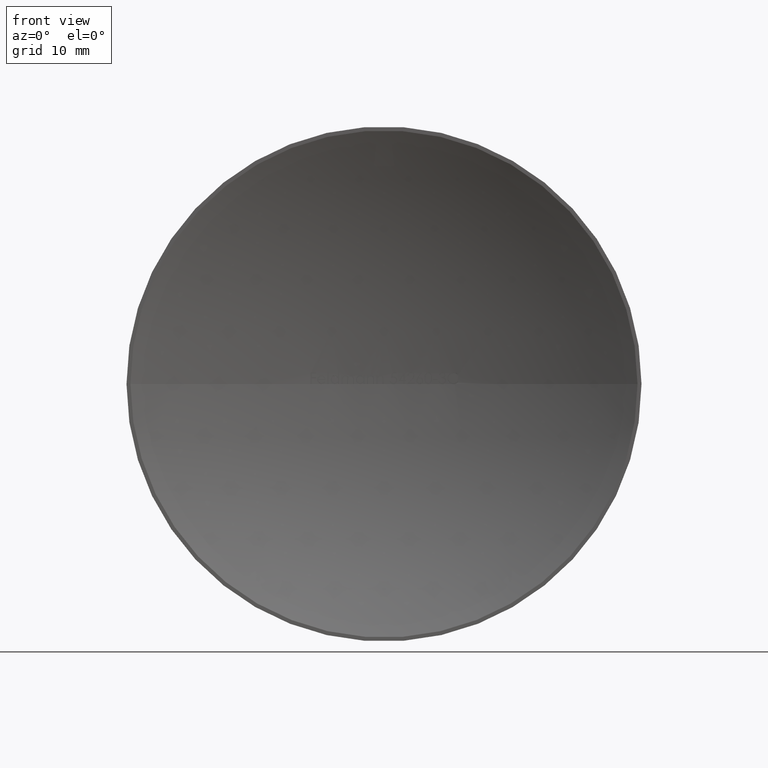
[diagram: clean part render]
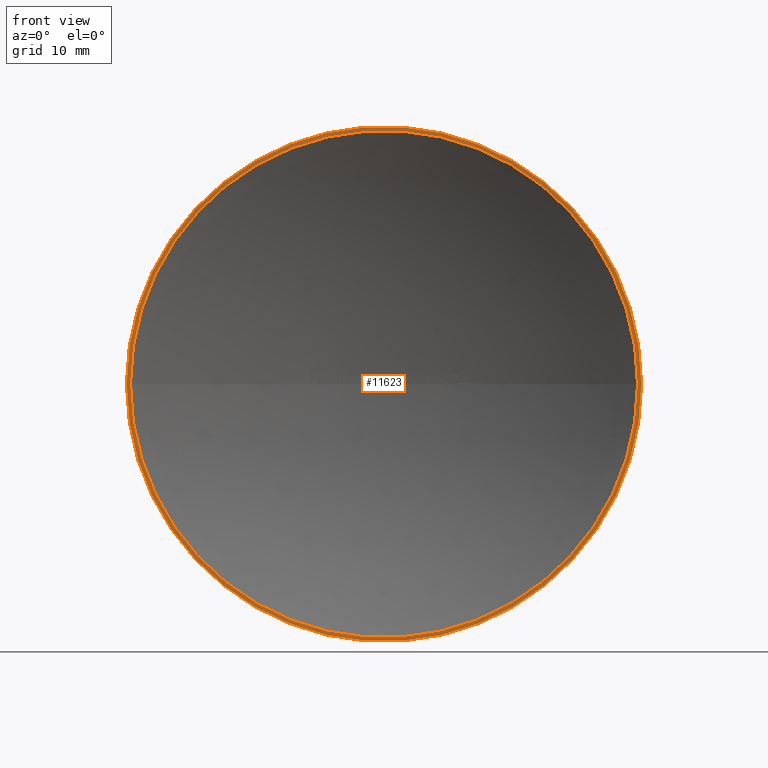
[diagram: same view with one face highlighted and labeled with its STEP entity id]
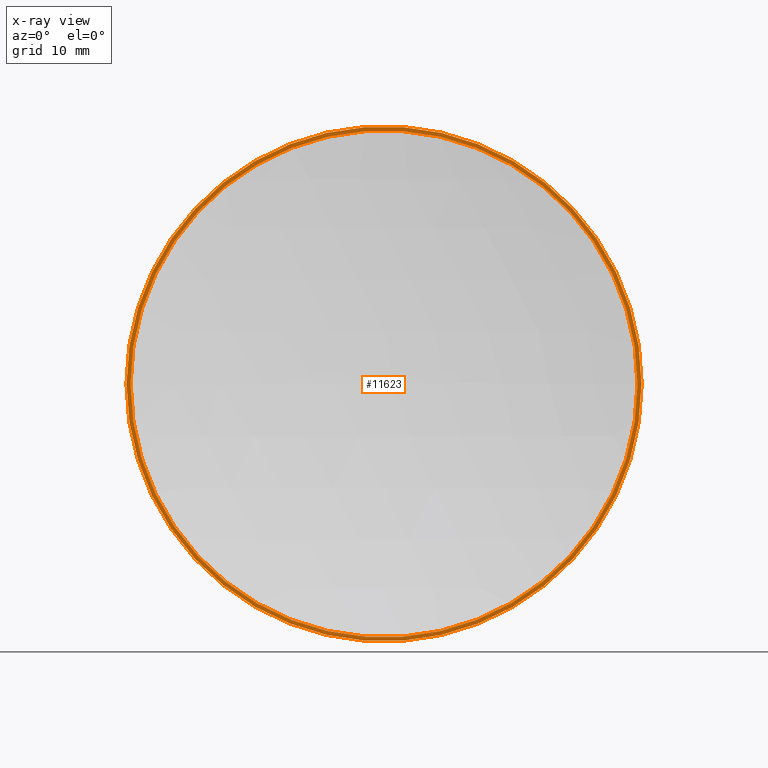
[diagram: x-ray of the same camera — body ghosted, the highlighted face saturated]
A machine part, front view. The second image highlights one B-rep face of the part: STEP entity #11623.
The next image is the same camera in x-ray: the body ghosted, the highlighted face saturated — about 0% of this face is hidden behind the body in this view.
In plain terms, the highlighted planar face has unit normal (-0, -1, 0).
Its self-contained STEP definition (entity closure, byte-faithful):
#61 = CIRCLE ( 'NONE', #3767, 29.68202317902207500 ) ;
#331 = CIRCLE ( 'NONE', #4582, 30.15000000000006600 ) ;
#374 = CARTESIAN_POINT ( 'NONE',  ( -6.480425442282014600E-014, 2.749536709423239200E-013, 0.0000000000000000000 ) ) ;
#758 = PLANE ( 'NONE',  #10467 ) ;
#843 = DIRECTION ( 'NONE',  ( -9.257750631831822700E-015, -1.000000000000000000, -0.0000000000000000000 ) ) ;
#931 = DIRECTION ( 'NONE',  ( 1.000000000000000000, -9.257750631831822700E-015, 0.0000000000000000000 ) ) ;
#939 = CARTESIAN_POINT ( 'NONE',  ( 30.14999999999999900, -2.432787131429308200E-015, 0.0000000000000000000 ) ) ;
#1137 = AXIS2_PLACEMENT_3D ( 'NONE', #374, #11280, #9231 ) ;
#1735 = CARTESIAN_POINT ( 'NONE',  ( 30.14999999999999900, -3.430654175165486700E-015, 0.0000000000000000000 ) ) ;
#2201 = ORIENTED_EDGE ( 'NONE', *, *, #6456, .T. ) ;
#2555 = VERTEX_POINT ( 'NONE', #7172 ) ;
#2558 = VERTEX_POINT ( 'NONE', #3342 ) ;
#3251 = DIRECTION ( 'NONE',  ( -9.257750631831822700E-015, -1.000000000000000000, -0.0000000000000000000 ) ) ;
#3305 = CARTESIAN_POINT ( 'NONE',  ( -29.68202317902150300, 5.558964229992239200E-013, 0.0000000000000000000 ) ) ;
#3342 = CARTESIAN_POINT ( 'NONE',  ( -30.15000000000013400, 5.558095759680309200E-013, 3.692310099429279100E-015 ) ) ;
#3767 = AXIS2_PLACEMENT_3D ( 'NONE', #7801, #843, #931 ) ;
#4181 = DIRECTION ( 'NONE',  ( 1.000000000000000000, -9.257750631831821100E-015, 0.0000000000000000000 ) ) ;
#4467 = EDGE_CURVE ( 'NONE', #12466, #2558, #4486, .T. ) ;
#4486 = CIRCLE ( 'NONE', #12002, 30.15000000000006600 ) ;
#4582 = AXIS2_PLACEMENT_3D ( 'NONE', #9151, #3251, #10135 ) ;
#5380 = ORIENTED_EDGE ( 'NONE', *, *, #9160, .F. ) ;
#6081 = VERTEX_POINT ( 'NONE', #3305 ) ;
#6456 = EDGE_CURVE ( 'NONE', #2558, #12466, #331, .T. ) ;
#7172 = CARTESIAN_POINT ( 'NONE',  ( 29.68202317902200300, 3.551898003296370800E-015, -3.634999467840615000E-015 ) ) ;
#7321 = FACE_BOUND ( 'NONE', #9103, .T. ) ;
#7801 = CARTESIAN_POINT ( 'NONE',  ( -6.480425442282014600E-014, 2.749536709423239200E-013, 0.0000000000000000000 ) ) ;
#8749 = DIRECTION ( 'NONE',  ( 1.000000000000000000, -9.257750631831822700E-015, 0.0000000000000000000 ) ) ;
#9103 = EDGE_LOOP ( 'NONE', ( #5380, #11659 ) ) ;
#9151 = CARTESIAN_POINT ( 'NONE',  ( -6.480425442282013300E-014, 2.766883944183007300E-013, 0.0000000000000000000 ) ) ;
#9160 = EDGE_CURVE ( 'NONE', #6081, #2555, #61, .T. ) ;
#9231 = DIRECTION ( 'NONE',  ( 1.000000000000000000, -9.257750631831822700E-015, 0.0000000000000000000 ) ) ;
#9782 = DIRECTION ( 'NONE',  ( -9.257750631831822700E-015, -1.000000000000000000, 0.0000000000000000000 ) ) ;
#9957 = FACE_OUTER_BOUND ( 'NONE', #12435, .T. ) ;
#9976 = ORIENTED_EDGE ( 'NONE', *, *, #4467, .T. ) ;
#10010 = CARTESIAN_POINT ( 'NONE',  ( -6.480425442282013300E-014, 2.766883944183007300E-013, 0.0000000000000000000 ) ) ;
#10135 = DIRECTION ( 'NONE',  ( 1.000000000000000000, -9.257750631831821100E-015, 0.0000000000000000000 ) ) ;
#10155 = EDGE_CURVE ( 'NONE', #2555, #6081, #10968, .T. ) ;
#10467 = AXIS2_PLACEMENT_3D ( 'NONE', #1735, #9782, #8749 ) ;
#10968 = CIRCLE ( 'NONE', #1137, 29.68202317902207500 ) ;
#11280 = DIRECTION ( 'NONE',  ( -9.257750631831822700E-015, -1.000000000000000000, -0.0000000000000000000 ) ) ;
#11623 = ADVANCED_FACE ( 'NONE', ( #9957, #7321 ), #758, .T. ) ;
#11659 = ORIENTED_EDGE ( 'NONE', *, *, #10155, .F. ) ;
#12002 = AXIS2_PLACEMENT_3D ( 'NONE', #10010, #12044, #4181 ) ;
#12044 = DIRECTION ( 'NONE',  ( -9.257750631831822700E-015, -1.000000000000000000, -0.0000000000000000000 ) ) ;
#12435 = EDGE_LOOP ( 'NONE', ( #9976, #2201 ) ) ;
#12466 = VERTEX_POINT ( 'NONE', #939 ) ;